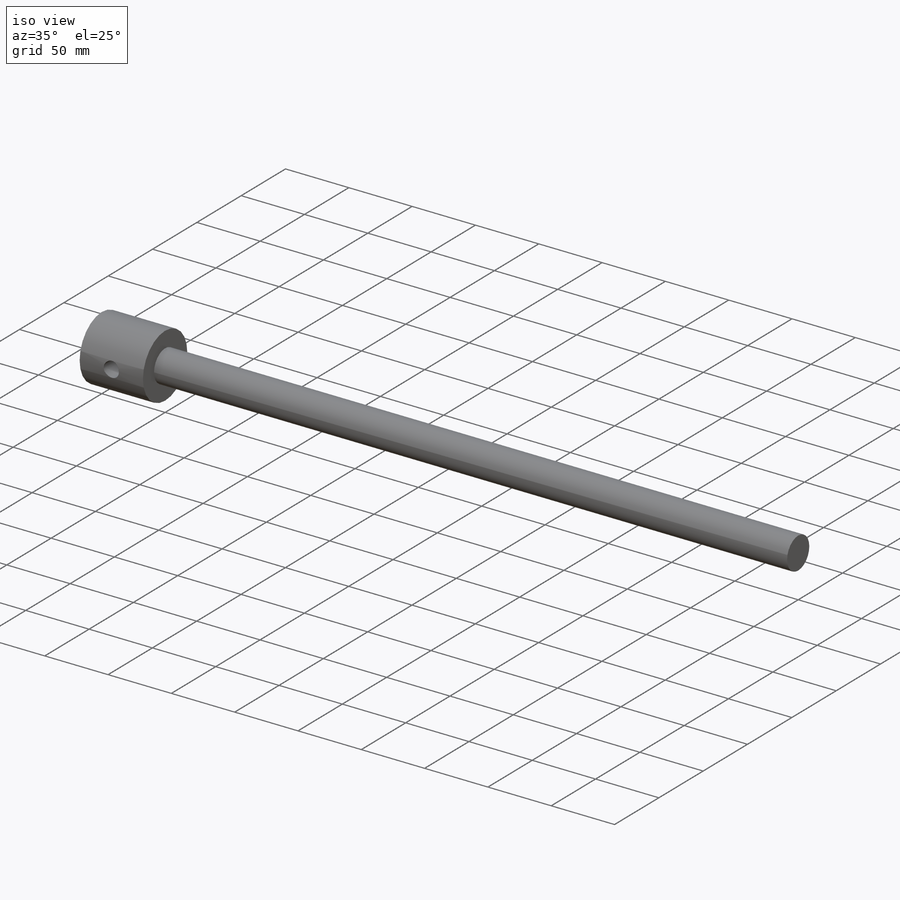
[diagram: iso view]
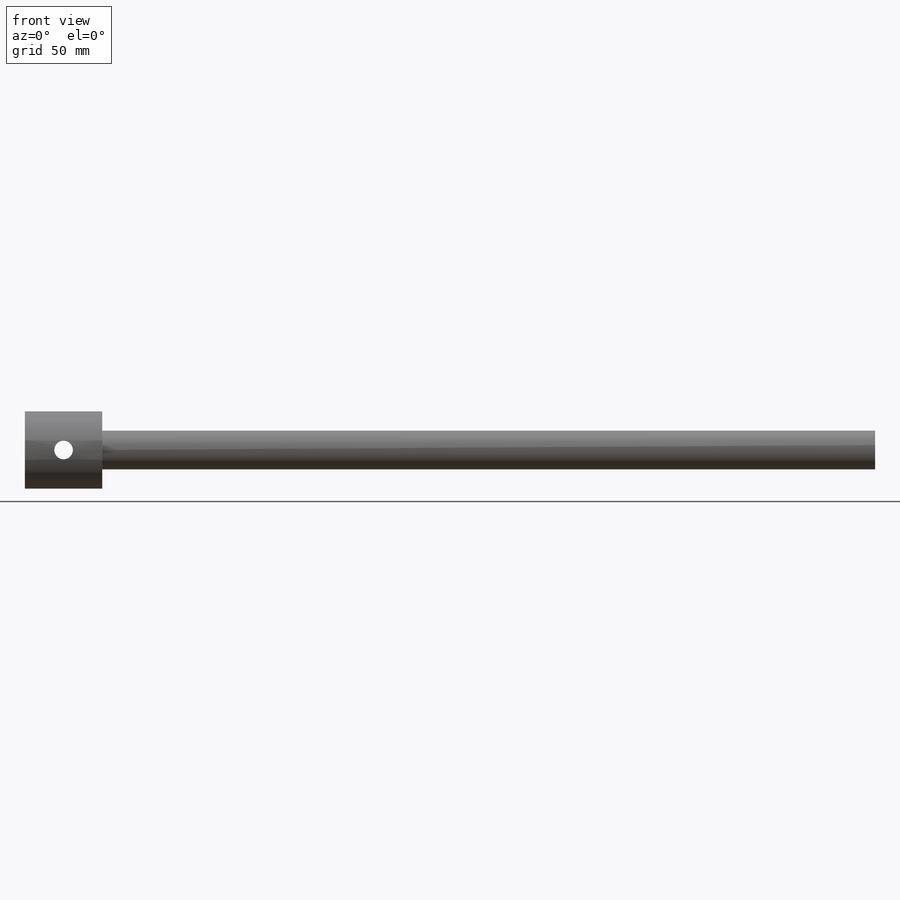
[diagram: front view]
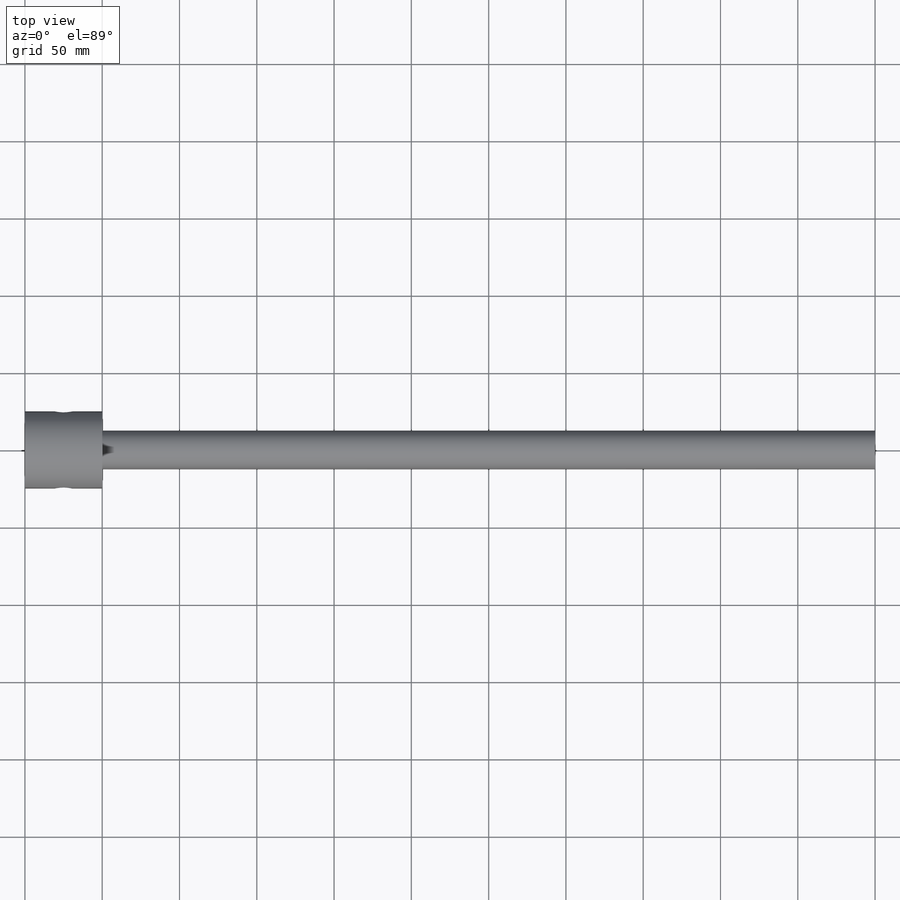
[diagram: top view]
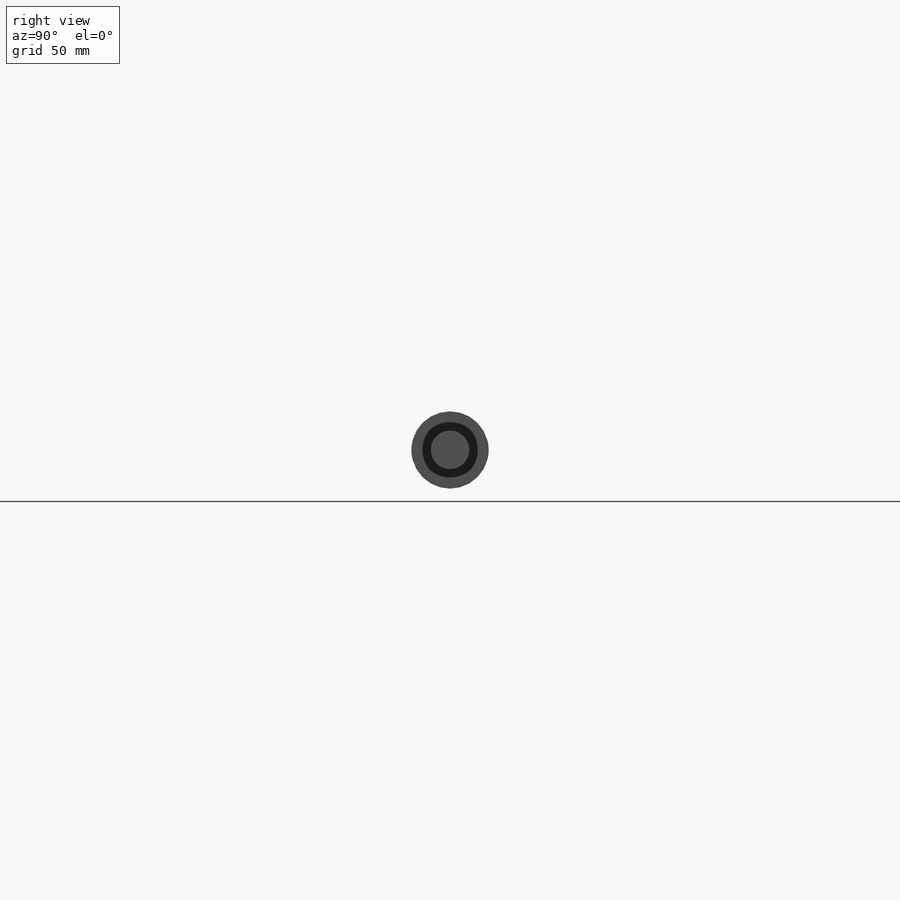
[diagram: right view]
SOLIDWORKS PART (.sldprt)
format: sldprt  version: not decoded by parser v0  size: 272,384 bytes
history: native  units: mm
features: sketch x3, extrude x2, thread x2, material x1, cut_extrude x1 (+13 scaffold rows collapsed)
feature tree (22):
  scaffold x13  (default folders/planes/origin — collapsed)
  material  "Material <not specified>"
  sketch  "Sketch1"  dims[D1=50.0mm]
  extrude  "Boss-Extrude1"  Depth=50mm
  sketch  "Sketch2"  dims[D1=12.0mm D2=25.0mm]
  cut_extrude  "Cut-Extrude1"  Depth=60mm
  sketch  "Sketch3"  dims[D1=25.0mm]
  extrude  "Boss-Extrude2"  [1 undecoded]
  thread  "Cosmetic Thread1"  Diameter=5mm  [1 undecoded]
  thread  "Cosmetic Thread2"  Diameter=5mm  [1 undecoded]
decode coverage: 7 of 8 modeling features carry decoded parameters
note: 3 parameter values undecoded
note: suppression state not decoded; provenance and decode notes live in map.json
